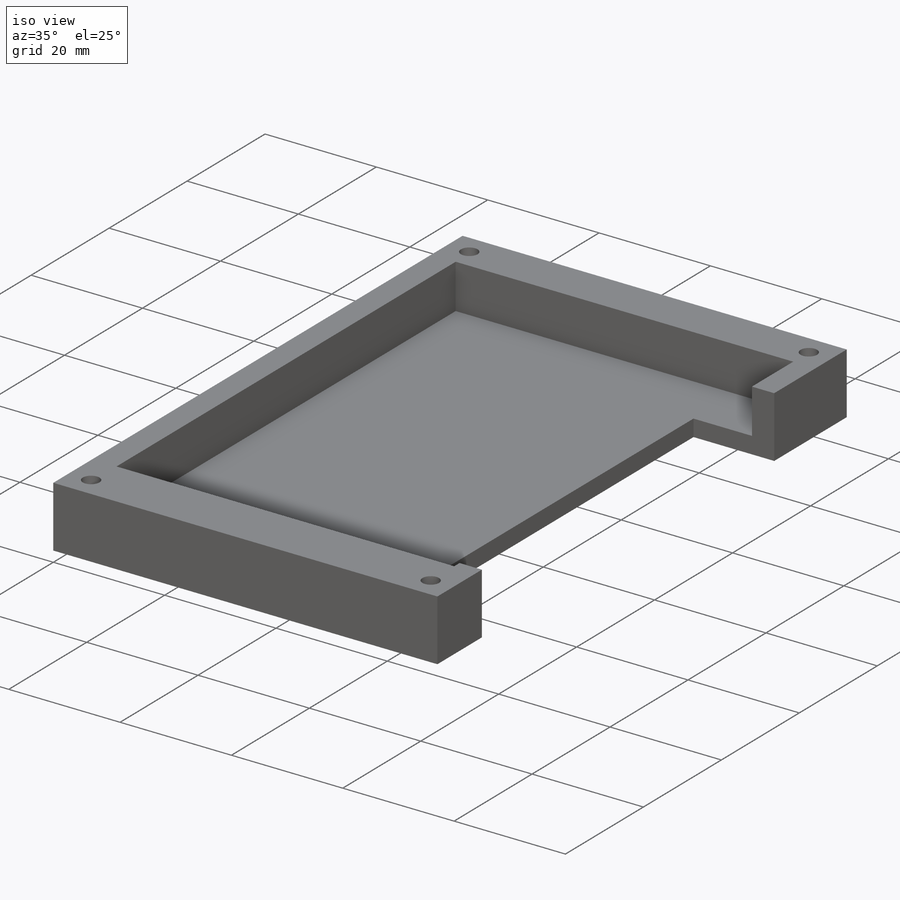
[diagram: iso view]
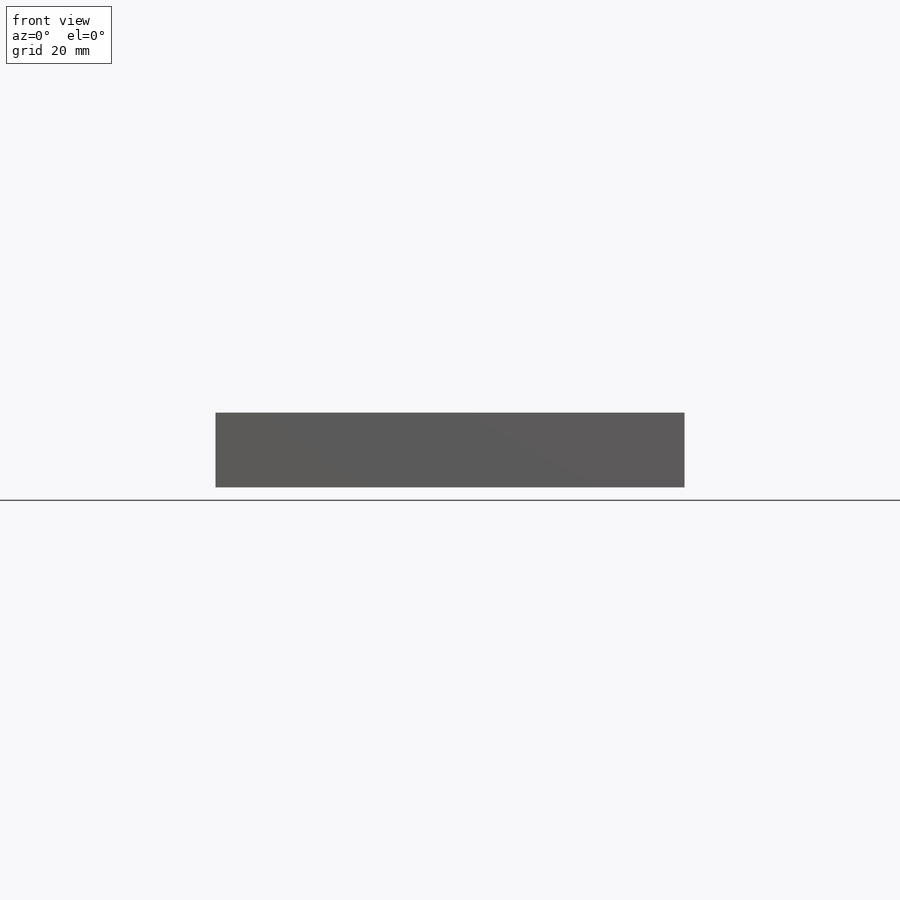
[diagram: front view]
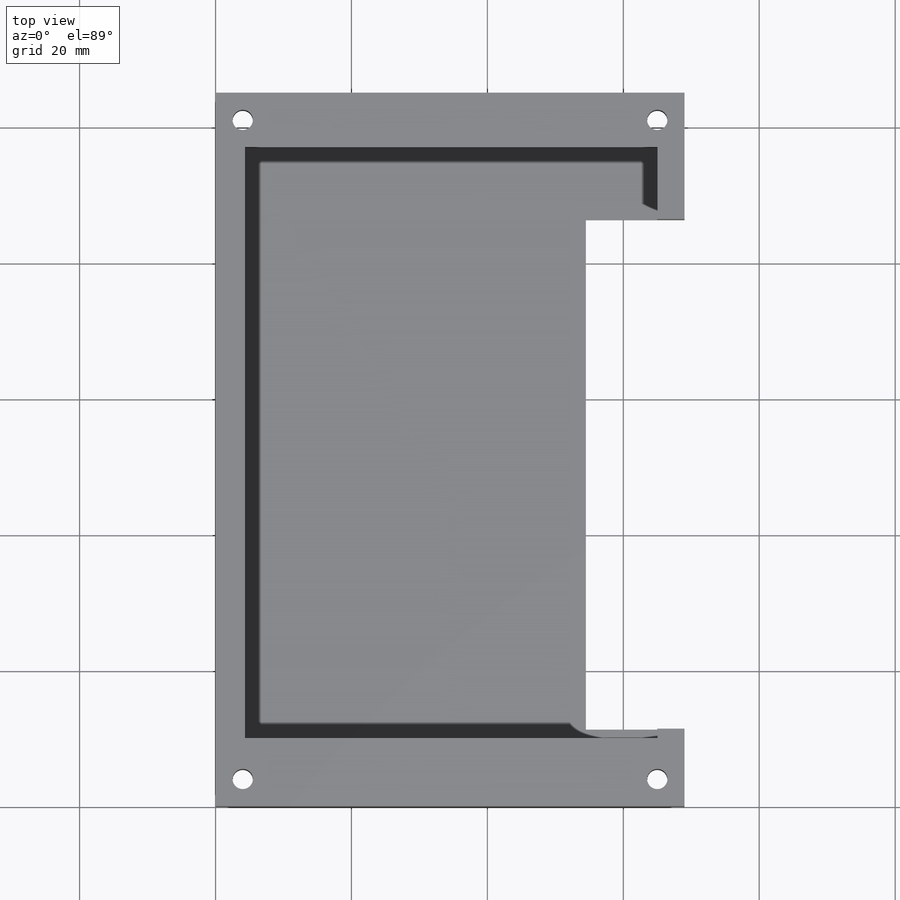
[diagram: top view]
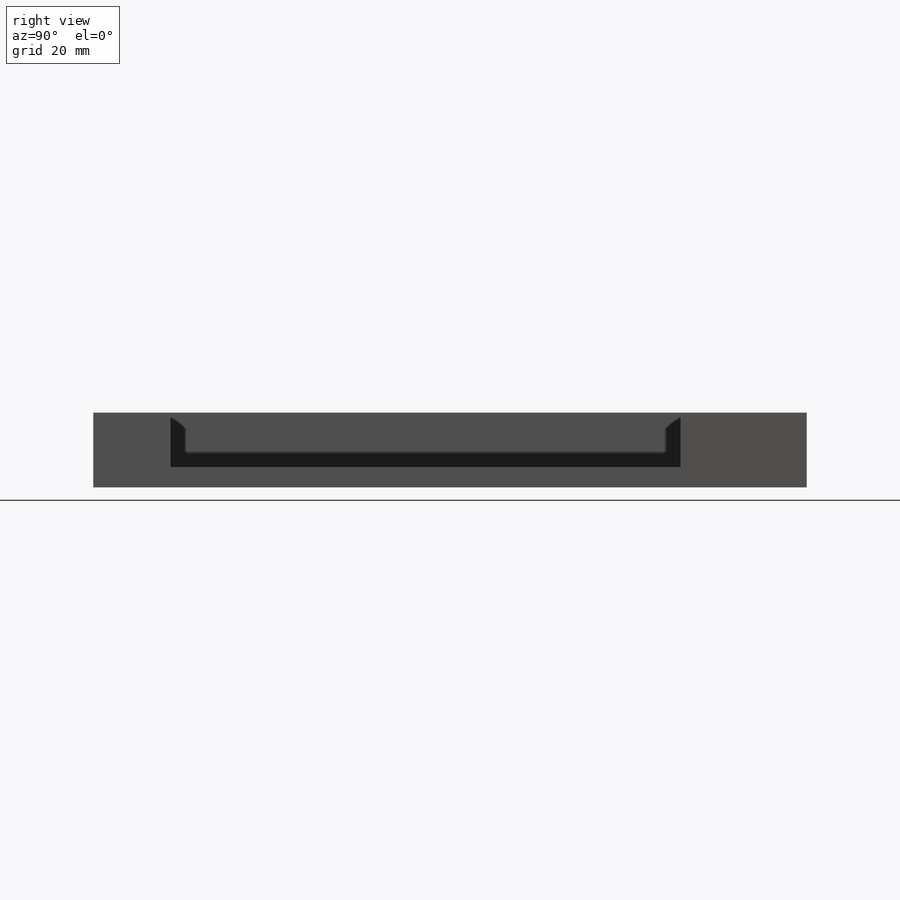
[diagram: right view]
SOLIDWORKS PART (.sldprt)
format: sldprt  version: not decoded by parser v0  size: 201,216 bytes
history: native  units: mm
features: sketch x4, cut_extrude x3, material x1, extrude x1 (+12 scaffold rows collapsed)
feature tree (21):
  scaffold x12  (default folders/planes/origin — collapsed)
  material  "Material <not specified>"
  sketch  "Sketch1"  dims[D1=105.0mm D2=69.0mm]
  extrude  "Boss-Extrude2"  Depth=11mm
  sketch  "Sketch3"  dims[D1=4.0mm D2=8.0mm D3=10.0mm]
  cut_extrude  "Cut-Extrude1"  Depth=8mm
  sketch  "Sketch4"  dims[D1=3.0mm D2=3.0mm D3=3.0mm D4=3.0mm D5=4.0mm D6=4.0mm D7=4.0mm D8=4.0mm D9=4.0mm D10=4.0mm D11=4.0mm D12=4.0mm]
  cut_extrude  "Cut-Extrude2"  [1 undecoded]
  sketch  "Sketch5"  dims[c1.D1=14.5mm c1.D2=1.5mm c1.D3=75.0mm c2.D1=14.5mm c2.D2=1.4mm c2.D3=75.0mm]
  cut_extrude  "Cut-Extrude3"  [1 undecoded]
decode coverage: 6 of 8 modeling features carry decoded parameters
note: 2 parameter values undecoded
note: suppression state not decoded; provenance and decode notes live in map.json
